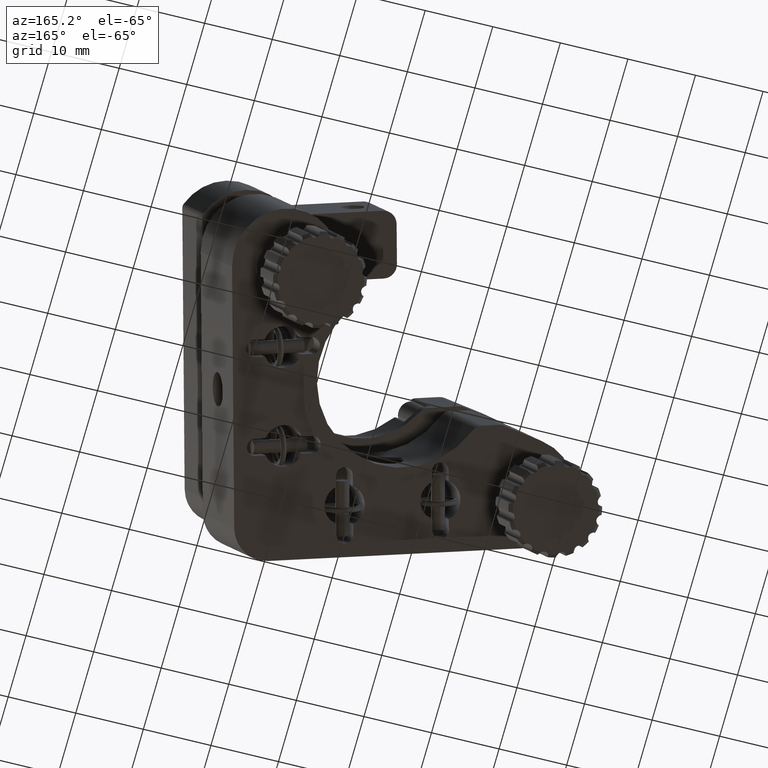
[diagram: clean part render]
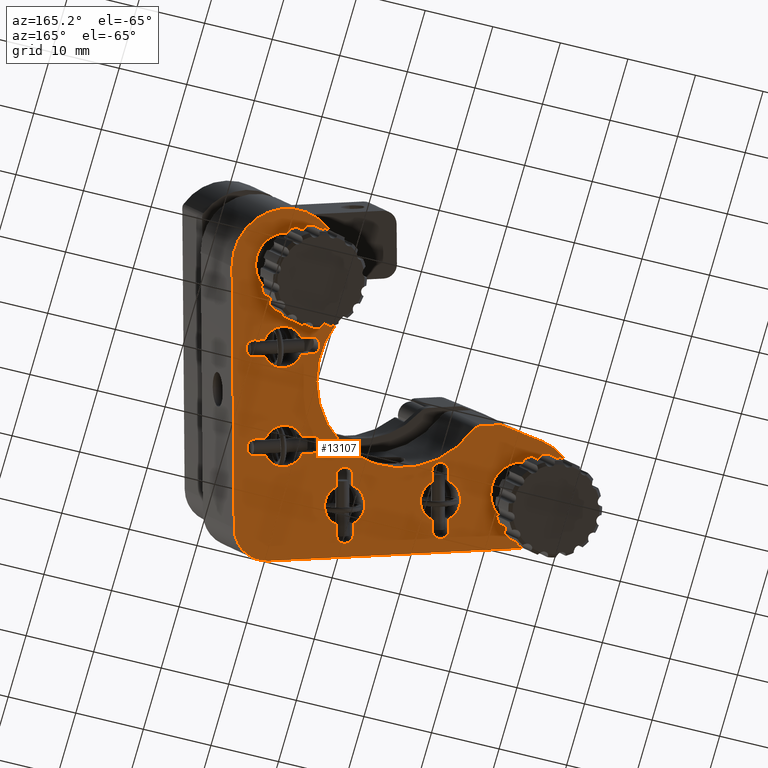
[diagram: same view with one face highlighted and labeled with its STEP entity id]
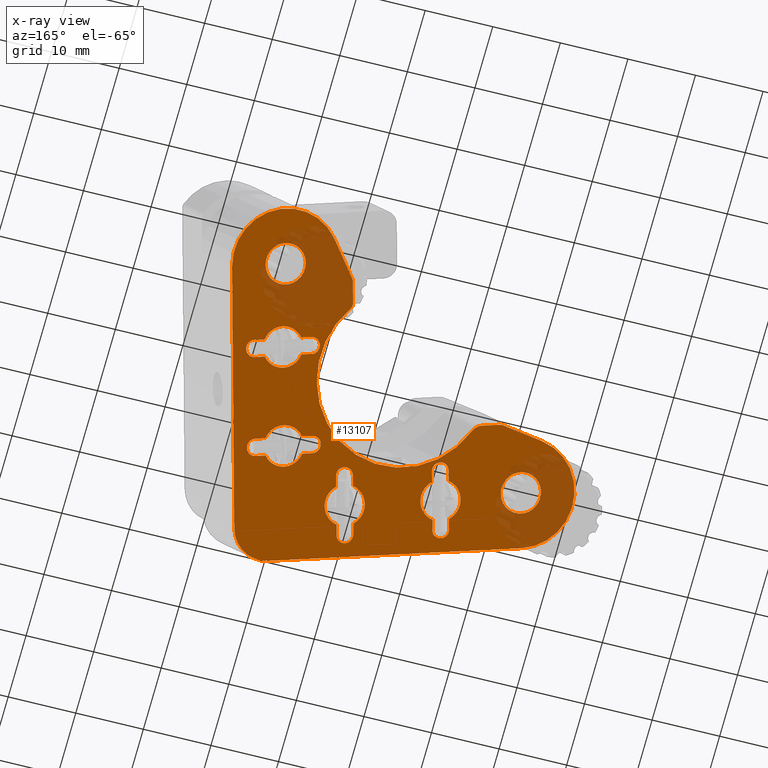
[diagram: x-ray of the same camera — body ghosted, the highlighted face saturated]
A machine part, auxiliary view. The second image highlights one B-rep face of the part: STEP entity #13107.
The next image is the same camera in x-ray: the body ghosted, the highlighted face saturated — about 20% of this face is hidden behind the body in this view.
In plain terms, the highlighted planar face has unit normal (-0.2028, 0.3443, -0.9167).
Its self-contained STEP definition (entity closure, byte-faithful):
#29 = DIRECTION ( 'NONE',  ( 0.2027682202555435900, -0.3442554385256142400, 0.9167187365271513000 ) ) ;
#32 = CARTESIAN_POINT ( 'NONE',  ( -604.0167296180897000, -1717.766813199293200, -528.8791007092810300 ) ) ;
#141 = DIRECTION ( 'NONE',  ( -0.2027682202555435900, 0.3442554385256142400, -0.9167187365271513000 ) ) ;
#217 = ORIENTED_EDGE ( 'NONE', *, *, #38135, .T. ) ;
#264 = ORIENTED_EDGE ( 'NONE', *, *, #40865, .T. ) ;
#279 = DIRECTION ( 'NONE',  ( 0.2027682202555435900, -0.3442554385256142400, 0.9167187365271513000 ) ) ;
#339 = CIRCLE ( 'NONE', #36694, 13.00000000000000400 ) ;
#760 = EDGE_CURVE ( 'NONE', #10450, #20540, #9610, .T. ) ;
#772 = EDGE_CURVE ( 'NONE', #38574, #31742, #26056, .T. ) ;
#822 = CIRCLE ( 'NONE', #26625, 13.00000000000000400 ) ;
#939 = DIRECTION ( 'NONE',  ( -0.2027682202555435900, 0.3442554385256142400, -0.9167187365271513000 ) ) ;
#1026 = EDGE_CURVE ( 'NONE', #9047, #29295, #34203, .T. ) ;
#1081 = CARTESIAN_POINT ( 'NONE',  ( -617.9726459261555600, -1718.856356168313400, -526.2013598478597500 ) ) ;
#1138 = EDGE_CURVE ( 'NONE', #23251, #16118, #26015, .T. ) ;
#1208 = CARTESIAN_POINT ( 'NONE',  ( -590.8714969947068300, -1721.638414137817300, -533.2405858011239800 ) ) ;
#1248 = AXIS2_PLACEMENT_3D ( 'NONE', #1325, #24270, #4627 ) ;
#1325 = CARTESIAN_POINT ( 'NONE',  ( -589.3044189134203600, -1720.448576675890500, -533.1403867105787000 ) ) ;
#1389 = EDGE_CURVE ( 'NONE', #39997, #17070, #13641, .T. ) ;
#1491 = ORIENTED_EDGE ( 'NONE', *, *, #20864, .T. ) ;
#1512 = VERTEX_POINT ( 'NONE', #1208 ) ;
#1550 = CARTESIAN_POINT ( 'NONE',  ( -604.3918342159903400, -1719.170044002340800, -529.3230869915640800 ) ) ;
#1667 = ORIENTED_EDGE ( 'NONE', *, *, #2061, .F. ) ;
#1668 = AXIS2_PLACEMENT_3D ( 'NONE', #23387, #3722, #26713 ) ;
#1691 = DIRECTION ( 'NONE',  ( 0.9461293057665262100, -0.1724606737361631900, -0.2740376849709178500 ) ) ;
#1753 = DIRECTION ( 'NONE',  ( 0.2027682202555435900, -0.3442554385256142400, 0.9167187365271513000 ) ) ;
#1755 = DIRECTION ( 'NONE',  ( -0.9461293057665245400, 0.1724606737361788800, 0.2740376849709133500 ) ) ;
#1764 = DIRECTION ( 'NONE',  ( 0.9461293057665247600, -0.1724606737361763800, -0.2740376849709138500 ) ) ;
#1805 = CARTESIAN_POINT ( 'NONE',  ( -615.1342580088559100, -1719.373738189522100, -527.0234729027724800 ) ) ;
#1860 = ORIENTED_EDGE ( 'NONE', *, *, #23081, .F. ) ;
#1914 = VECTOR ( 'NONE', #21183, 1000.000000000000000 ) ;
#1922 = DIRECTION ( 'NONE',  ( 0.9461293057665255400, -0.1724606737361978900, -0.2740376849708978100 ) ) ;
#2001 = DIRECTION ( 'NONE',  ( 0.2027682202555435900, -0.3442554385256142400, 0.9167187365271513000 ) ) ;
#2020 = DIRECTION ( 'NONE',  ( 0.9461293057665255400, -0.1724606737361978900, -0.2740376849708978100 ) ) ;
#2060 = DIRECTION ( 'NONE',  ( 0.2027682202555435900, -0.3442554385256142400, 0.9167187365271513000 ) ) ;
#2061 = EDGE_CURVE ( 'NONE', #31905, #29067, #9743, .T. ) ;
#2088 = CARTESIAN_POINT ( 'NONE',  ( -589.8830544340258900, -1727.103394275187800, -535.5114828490721900 ) ) ;
#2144 = CARTESIAN_POINT ( 'NONE',  ( -602.8340679858815700, -1717.982389041463400, -529.2216478154946300 ) ) ;
#2303 = CARTESIAN_POINT ( 'NONE',  ( -578.2512603692623500, -1702.803173357949800, -528.9588459410514400 ) ) ;
#2440 = CIRCLE ( 'NONE', #5711, 3.000000000000052000 ) ;
#2508 = VERTEX_POINT ( 'NONE', #6178 ) ;
#2722 = ORIENTED_EDGE ( 'NONE', *, *, #1026, .T. ) ;
#2786 = CARTESIAN_POINT ( 'NONE',  ( -582.6976832644979800, -1694.478840161386900, -524.8493082149454900 ) ) ;
#2877 = ORIENTED_EDGE ( 'NONE', *, *, #1389, .T. ) ;
#3004 = CARTESIAN_POINT ( 'NONE',  ( -575.3972344050694100, -1729.523756811744800, -539.6245076650707200 ) ) ;
#3075 = CARTESIAN_POINT ( 'NONE',  ( -575.2535842459723200, -1717.196277030266400, -535.0269423453570400 ) ) ;
#3228 = ORIENTED_EDGE ( 'NONE', *, *, #38642, .T. ) ;
#3397 = AXIS2_PLACEMENT_3D ( 'NONE', #9909, #32825, #13181 ) ;
#3430 = CARTESIAN_POINT ( 'NONE',  ( -592.6327941475206000, -1728.077655894944200, -535.2691348334038800 ) ) ;
#3722 = DIRECTION ( 'NONE',  ( 0.2027682202555435900, -0.3442554385256142400, 0.9167187365271513000 ) ) ;
#3769 = EDGE_CURVE ( 'NONE', #27106, #9865, #11368, .T. ) ;
#3875 = CIRCLE ( 'NONE', #32314, 3.000000000000052000 ) ;
#3968 = AXIS2_PLACEMENT_3D ( 'NONE', #23757, #4106, #27058 ) ;
#3988 = VERTEX_POINT ( 'NONE', #39897 ) ;
#3995 = DIRECTION ( 'NONE',  ( -0.2027682202555435900, 0.3442554385256142400, -0.9167187365271513000 ) ) ;
#4074 = ORIENTED_EDGE ( 'NONE', *, *, #4348, .T. ) ;
#4089 = VERTEX_POINT ( 'NONE', #34010 ) ;
#4106 = DIRECTION ( 'NONE',  ( 0.2027682202555435900, -0.3442554385256142400, 0.9167187365271513000 ) ) ;
#4198 = VERTEX_POINT ( 'NONE', #15161 ) ;
#4206 = DIRECTION ( 'NONE',  ( 0.2027682202555435900, -0.3442554385256142400, 0.9167187365271513000 ) ) ;
#4224 = VERTEX_POINT ( 'NONE', #5740 ) ;
#4348 = EDGE_CURVE ( 'NONE', #38510, #23251, #5696, .T. ) ;
#4374 = CIRCLE ( 'NONE', #4535, 1.000000000000004400 ) ;
#4413 = VECTOR ( 'NONE', #9513, 1000.000000000000000 ) ;
#4535 = AXIS2_PLACEMENT_3D ( 'NONE', #17064, #39968, #20352 ) ;
#4627 = DIRECTION ( 'NONE',  ( 0.9461293057665255400, -0.1724606737361978900, -0.2740376849708978100 ) ) ;
#4677 = LINE ( 'NONE', #3004, #22139 ) ;
#4774 = AXIS2_PLACEMENT_3D ( 'NONE', #20590, #939, #23887 ) ;
#4823 = CIRCLE ( 'NONE', #40499, 3.000000000000052000 ) ;
#5034 = CARTESIAN_POINT ( 'NONE',  ( -590.3772757143664200, -1724.370904206502500, -534.3760343250982000 ) ) ;
#5252 = DIRECTION ( 'NONE',  ( 0.2027682202555435900, -0.3442554385256142400, 0.9167187365271513000 ) ) ;
#5295 = CARTESIAN_POINT ( 'NONE',  ( -607.7295715507275400, -1712.972147371091300, -526.2573193031896600 ) ) ;
#5353 = CARTESIAN_POINT ( 'NONE',  ( -617.1537531635779000, -1726.756942953027000, -529.3493978242208900 ) ) ;
#5470 = LINE ( 'NONE', #8680, #4413 ) ;
#5609 = DIRECTION ( 'NONE',  ( 0.2524368943402550100, 0.9229005954381008800, 0.2907406151810336100 ) ) ;
#5617 = CARTESIAN_POINT ( 'NONE',  ( -591.4501325153124800, -1728.293231737114400, -535.6116819396174800 ) ) ;
#5696 = LINE ( 'NONE', #18380, #39508 ) ;
#5711 = AXIS2_PLACEMENT_3D ( 'NONE', #5034, #27983, #8337 ) ;
#5740 = CARTESIAN_POINT ( 'NONE',  ( -606.1624432199819200, -1725.611468260516900, -531.3503959383198200 ) ) ;
#5763 = CIRCLE ( 'NONE', #29496, 3.000000000000052000 ) ;
#5913 = VERTEX_POINT ( 'NONE', #20585 ) ;
#5995 = CIRCLE ( 'NONE', #33369, 3.000000000000052000 ) ;
#6049 = ORIENTED_EDGE ( 'NONE', *, *, #37254, .T. ) ;
#6091 = DIRECTION ( 'NONE',  ( -0.2027682202555435900, 0.3442554385256142400, -0.9167187365271513000 ) ) ;
#6120 = DIRECTION ( 'NONE',  ( -0.9461293057665367500, 0.1724606737361070700, 0.2740376849709168500 ) ) ;
#6177 = EDGE_CURVE ( 'NONE', #9865, #41762, #20584, .T. ) ;
#6178 = CARTESIAN_POINT ( 'NONE',  ( -579.6858357559220800, -1702.532882788744000, -528.5400312260155700 ) ) ;
#6197 = DIRECTION ( 'NONE',  ( 0.2027682202555435900, -0.3442554385256142400, 0.9167187365271513000 ) ) ;
#6350 = DIRECTION ( 'NONE',  ( 0.9461293057665247600, -0.1724606737361763800, -0.2740376849709138500 ) ) ;
#6397 = CARTESIAN_POINT ( 'NONE',  ( -603.9069247868277400, -1721.904716572075400, -530.4572954300140300 ) ) ;
#6592 = ORIENTED_EDGE ( 'NONE', *, *, #7336, .T. ) ;
#6614 = DIRECTION ( 'NONE',  ( -0.2027682202555435900, 0.3442554385256142400, -0.9167187365271513000 ) ) ;
#6666 = CARTESIAN_POINT ( 'NONE',  ( -583.9267755808383500, -1718.037612792104300, -533.4244735610569700 ) ) ;
#6702 = VERTEX_POINT ( 'NONE', #20716 ) ;
#6743 = VECTOR ( 'NONE', #16731, 1000.000000000000200 ) ;
#6754 = CIRCLE ( 'NONE', #20014, 2.000000000000047500 ) ;
#6807 = FACE_BOUND ( 'NONE', #32633, .T. ) ;
#7155 = ORIENTED_EDGE ( 'NONE', *, *, #1138, .T. ) ;
#7215 = CARTESIAN_POINT ( 'NONE',  ( -571.9830819203176600, -1703.984170562142700, -530.7887988283664500 ) ) ;
#7291 = ORIENTED_EDGE ( 'NONE', *, *, #21127, .F. ) ;
#7336 = EDGE_CURVE ( 'NONE', #32980, #9047, #7605, .T. ) ;
#7601 = VECTOR ( 'NONE', #27424, 1000.000000000000100 ) ;
#7605 = CIRCLE ( 'NONE', #25639, 1.249999999999991100 ) ;
#7798 = AXIS2_PLACEMENT_3D ( 'NONE', #25512, #25653, #25605 ) ;
#7981 = DIRECTION ( 'NONE',  ( -0.2027682202555435900, 0.3442554385256142400, -0.9167187365271513000 ) ) ;
#7990 = EDGE_CURVE ( 'NONE', #4198, #28126, #35665, .T. ) ;
#8122 = EDGE_CURVE ( 'NONE', #13211, #37978, #32165, .T. ) ;
#8139 = CARTESIAN_POINT ( 'NONE',  ( -583.6438125702645700, -1694.306379487650700, -524.5752705299745500 ) ) ;
#8337 = DIRECTION ( 'NONE',  ( -0.9461293057665245400, 0.1724606737361788800, 0.2740376849709133500 ) ) ;
#8436 = CARTESIAN_POINT ( 'NONE',  ( -594.3485753681405900, -1706.206547424991200, -526.6763640871013200 ) ) ;
#8547 = AXIS2_PLACEMENT_3D ( 'NONE', #1805, #1753, #1691 ) ;
#8587 = DIRECTION ( 'NONE',  ( -0.9461293057665185500, 0.1724606737362147600, 0.2740376849709115800 ) ) ;
#8680 = CARTESIAN_POINT ( 'NONE',  ( -579.6858357559220800, -1702.532882788744000, -528.5400312260155700 ) ) ;
#8757 = EDGE_CURVE ( 'NONE', #37978, #29074, #5470, .T. ) ;
#8771 = AXIS2_PLACEMENT_3D ( 'NONE', #28303, #26247, #27588 ) ;
#8861 = ORIENTED_EDGE ( 'NONE', *, *, #26341, .F. ) ;
#8881 = EDGE_CURVE ( 'NONE', #30744, #32980, #31074, .T. ) ;
#8885 = AXIS2_PLACEMENT_3D ( 'NONE', #24894, #5252, #28189 ) ;
#8945 = VECTOR ( 'NONE', #14441, 1000.000000000000000 ) ;
#9047 = VERTEX_POINT ( 'NONE', #22710 ) ;
#9117 = CARTESIAN_POINT ( 'NONE',  ( -604.9797815877738000, -1725.827044102687100, -531.6929430445334200 ) ) ;
#9312 = EDGE_CURVE ( 'NONE', #41762, #4198, #35072, .T. ) ;
#9481 = CARTESIAN_POINT ( 'NONE',  ( -583.9267755808383500, -1718.037612792104300, -533.4244735610569700 ) ) ;
#9513 = DIRECTION ( 'NONE',  ( -0.9446034693946007100, 0.1779742018375035400, 0.2757706820675237500 ) ) ;
#9550 = ORIENTED_EDGE ( 'NONE', *, *, #19753, .T. ) ;
#9565 = LINE ( 'NONE', #22090, #26012 ) ;
#9571 = AXIS2_PLACEMENT_3D ( 'NONE', #5617, #34810, #27264 ) ;
#9610 = LINE ( 'NONE', #39133, #1914 ) ;
#9692 = VERTEX_POINT ( 'NONE', #37990 ) ;
#9743 = CIRCLE ( 'NONE', #40067, 3.000000000000052000 ) ;
#9827 = ORIENTED_EDGE ( 'NONE', *, *, #12828, .T. ) ;
#9865 = VERTEX_POINT ( 'NONE', #31872 ) ;
#9909 = CARTESIAN_POINT ( 'NONE',  ( -604.9797815877738000, -1725.827044102687100, -531.6929430445334200 ) ) ;
#10122 = LINE ( 'NONE', #9481, #25533 ) ;
#10135 = EDGE_CURVE ( 'NONE', #25642, #29067, #22005, .T. ) ;
#10281 = CARTESIAN_POINT ( 'NONE',  ( -575.5691303638976700, -1718.349902774563800, -535.3903681143333400 ) ) ;
#10356 = VECTOR ( 'NONE', #25903, 1000.000000000000200 ) ;
#10380 = CARTESIAN_POINT ( 'NONE',  ( -587.5388877970667600, -1724.888286227711000, -535.1981473800109400 ) ) ;
#10450 = VERTEX_POINT ( 'NONE', #42275 ) ;
#10971 = DIRECTION ( 'NONE',  ( -0.2027682202555435900, 0.3442554385256142400, -0.9167187365271513000 ) ) ;
#10981 = EDGE_CURVE ( 'NONE', #6702, #41404, #5995, .T. ) ;
#11053 = EDGE_CURVE ( 'NONE', #6702, #27634, #38742, .T. ) ;
#11069 = VERTEX_POINT ( 'NONE', #42017 ) ;
#11284 = CARTESIAN_POINT ( 'NONE',  ( -572.2748288927572300, -1706.306050004096700, -531.5962030862209500 ) ) ;
#11322 = LINE ( 'NONE', #30537, #36436 ) ;
#11340 = ORIENTED_EDGE ( 'NONE', *, *, #40102, .F. ) ;
#11368 = LINE ( 'NONE', #22739, #10356 ) ;
#11379 = AXIS2_PLACEMENT_3D ( 'NONE', #23665, #3995, #26965 ) ;
#11501 = EDGE_CURVE ( 'NONE', #11984, #31742, #14681, .T. ) ;
#11659 = VERTEX_POINT ( 'NONE', #8139 ) ;
#11711 = DIRECTION ( 'NONE',  ( 0.9461293057665236500, -0.1724606737361761300, -0.2740376849709180200 ) ) ;
#11759 = VECTOR ( 'NONE', #41254, 1000.000000000000000 ) ;
#11777 = VERTEX_POINT ( 'NONE', #2088 ) ;
#11855 = EDGE_CURVE ( 'NONE', #41404, #11777, #3875, .T. ) ;
#11884 = CARTESIAN_POINT ( 'NONE',  ( -590.2674708831042400, -1728.508807579284600, -535.9542290458310800 ) ) ;
#11984 = VERTEX_POINT ( 'NONE', #3075 ) ;
#12101 = CARTESIAN_POINT ( 'NONE',  ( -603.7561357396205000, -1725.708519275086700, -531.9190905705856900 ) ) ;
#12236 = VERTEX_POINT ( 'NONE', #13676 ) ;
#12335 = ORIENTED_EDGE ( 'NONE', *, *, #27975, .T. ) ;
#12391 = DIRECTION ( 'NONE',  ( 0.9461293057665255400, -0.1724606737361978900, -0.2740376849708978100 ) ) ;
#12638 = VECTOR ( 'NONE', #29133, 1000.000000000000100 ) ;
#12822 = VERTEX_POINT ( 'NONE', #15896 ) ;
#12828 = EDGE_CURVE ( 'NONE', #9692, #13315, #20691, .T. ) ;
#12886 = EDGE_CURVE ( 'NONE', #33987, #10450, #41671, .T. ) ;
#12936 = DIRECTION ( 'NONE',  ( -0.2027682202555437200, 0.3442554385256142400, -0.9167187365271511900 ) ) ;
#12948 = ORIENTED_EDGE ( 'NONE', *, *, #37509, .T. ) ;
#13107 = ADVANCED_FACE ( 'NONE', ( #15465, #6807, #24208, #31899, #23199, #18596, #14443 ), #35404, .T. ) ;
#13176 = CARTESIAN_POINT ( 'NONE',  ( -583.2956833449878800, -1715.730361303509000, -532.6976220231043700 ) ) ;
#13181 = DIRECTION ( 'NONE',  ( 0.9461293057665255400, -0.1724606737361978900, -0.2740376849708978100 ) ) ;
#13211 = VERTEX_POINT ( 'NONE', #32986 ) ;
#13268 = VERTEX_POINT ( 'NONE', #13364 ) ;
#13315 = VERTEX_POINT ( 'NONE', #20116 ) ;
#13320 = CARTESIAN_POINT ( 'NONE',  ( -583.4982930982851000, -1697.405842152307100, -525.7713992436897600 ) ) ;
#13364 = CARTESIAN_POINT ( 'NONE',  ( -584.4444224040515800, -1697.233381478570900, -525.4973615587188100 ) ) ;
#13394 = EDGE_CURVE ( 'NONE', #39088, #16717, #11322, .T. ) ;
#13563 = DIRECTION ( 'NONE',  ( 0.9461293057665255400, -0.1724606737361978900, -0.2740376849708978100 ) ) ;
#13628 = VECTOR ( 'NONE', #38424, 1000.000000000000200 ) ;
#13641 = CIRCLE ( 'NONE', #8771, 3.000000000000052000 ) ;
#13676 = CARTESIAN_POINT ( 'NONE',  ( -601.0685368695280900, -1722.422098593283600, -531.2794084849267600 ) ) ;
#13740 = CARTESIAN_POINT ( 'NONE',  ( -580.6316641061720200, -1704.735536122376300, -529.1579868054860800 ) ) ;
#14205 = ORIENTED_EDGE ( 'NONE', *, *, #35391, .T. ) ;
#14220 = CARTESIAN_POINT ( 'NONE',  ( -583.6438125702645700, -1694.306379487650700, -524.5752705299745500 ) ) ;
#14225 = AXIS2_PLACEMENT_3D ( 'NONE', #25833, #6197, #29100 ) ;
#14263 = CIRCLE ( 'NONE', #35085, 1.249999999999991100 ) ;
#14441 = DIRECTION ( 'NONE',  ( 0.9461293057665248800, -0.1724606737361763000, -0.2740376849709138000 ) ) ;
#14443 = FACE_OUTER_BOUND ( 'NONE', #40033, .T. ) ;
#14681 = LINE ( 'NONE', #24052, #23446 ) ;
#14893 = EDGE_CURVE ( 'NONE', #12822, #11984, #18399, .T. ) ;
#14956 = ORIENTED_EDGE ( 'NONE', *, *, #41924, .T. ) ;
#14966 = ORIENTED_EDGE ( 'NONE', *, *, #29365, .F. ) ;
#15125 = CIRCLE ( 'NONE', #3968, 3.000000000000052000 ) ;
#15128 = LINE ( 'NONE', #3430, #31549 ) ;
#15161 = CARTESIAN_POINT ( 'NONE',  ( -581.3900654056033100, -1733.275956420254300, -539.7080223161214000 ) ) ;
#15380 = EDGE_CURVE ( 'NONE', #31905, #42404, #10122, .T. ) ;
#15412 = CIRCLE ( 'NONE', #22086, 1.249999999999991100 ) ;
#15431 = VECTOR ( 'NONE', #32261, 1000.000000000000100 ) ;
#15465 = FACE_BOUND ( 'NONE', #23281, .T. ) ;
#15509 = EDGE_CURVE ( 'NONE', #24159, #25642, #35703, .T. ) ;
#15827 = DIRECTION ( 'NONE',  ( -0.2027682202555435900, 0.3442554385256142400, -0.9167187365271513000 ) ) ;
#15895 = CARTESIAN_POINT ( 'NONE',  ( -578.8828163865706500, -1705.064199970652500, -529.6682360653510400 ) ) ;
#15896 = CARTESIAN_POINT ( 'NONE',  ( -574.3864687316895500, -1718.565478616734300, -535.7329152205470600 ) ) ;
#16118 = VERTEX_POINT ( 'NONE', #11884 ) ;
#16174 = CARTESIAN_POINT ( 'NONE',  ( -609.7675485831159700, -1710.662834730839900, -524.9393246301247000 ) ) ;
#16442 = EDGE_CURVE ( 'NONE', #38471, #1512, #15128, .T. ) ;
#16612 = DIRECTION ( 'NONE',  ( 0.9461293057665367500, -0.1724606737361070700, -0.2740376849709168500 ) ) ;
#16717 = VERTEX_POINT ( 'NONE', #17793 ) ;
#16731 = DIRECTION ( 'NONE',  ( -0.9461293057665251000, 0.1724606737361751600, 0.2740376849709134100 ) ) ;
#16777 = VECTOR ( 'NONE', #39433, 1000.000000000000000 ) ;
#17064 = CARTESIAN_POINT ( 'NONE',  ( -610.0199854774563200, -1711.585735326277900, -525.2300652453058100 ) ) ;
#17070 = VERTEX_POINT ( 'NONE', #37726 ) ;
#17656 = ORIENTED_EDGE ( 'NONE', *, *, #11855, .F. ) ;
#17792 = CARTESIAN_POINT ( 'NONE',  ( -603.9069247868277400, -1721.904716572075400, -530.4572954300140300 ) ) ;
#17793 = CARTESIAN_POINT ( 'NONE',  ( -603.4588664559710200, -1724.647738189088600, -531.5864881242641800 ) ) ;
#17959 = CARTESIAN_POINT ( 'NONE',  ( -583.9267755808383500, -1718.037612792104300, -533.4244735610569700 ) ) ;
#18097 = CARTESIAN_POINT ( 'NONE',  ( -584.2733132604176900, -1698.034463957498700, -525.8360395896477300 ) ) ;
#18187 = CIRCLE ( 'NONE', #22014, 3.000000000000052000 ) ;
#18380 = CARTESIAN_POINT ( 'NONE',  ( -592.6327941475206000, -1728.077655894944200, -535.2691348334038800 ) ) ;
#18399 = CIRCLE ( 'NONE', #42291, 1.249999999999991100 ) ;
#18519 = CARTESIAN_POINT ( 'NONE',  ( -579.6858357559220800, -1702.532882788744000, -528.5400312260155700 ) ) ;
#18596 = FACE_BOUND ( 'NONE', #24143, .T. ) ;
#18794 = ORIENTED_EDGE ( 'NONE', *, *, #14893, .T. ) ;
#19014 = EDGE_CURVE ( 'NONE', #5913, #31693, #5763, .T. ) ;
#19092 = ORIENTED_EDGE ( 'NONE', *, *, #9312, .F. ) ;
#19274 = CARTESIAN_POINT ( 'NONE',  ( -590.2674708831042400, -1728.508807579284600, -535.9542290458310800 ) ) ;
#19302 = CIRCLE ( 'NONE', #20754, 3.000000000000052000 ) ;
#19556 = CIRCLE ( 'NONE', #4774, 3.000000000000052000 ) ;
#19664 = CARTESIAN_POINT ( 'NONE',  ( -573.4241542451399000, -1693.258428914295100, -526.4422109314604100 ) ) ;
#19750 = CIRCLE ( 'NONE', #11379, 3.000000000000052000 ) ;
#19753 = EDGE_CURVE ( 'NONE', #27634, #38471, #37361, .T. ) ;
#19778 = CARTESIAN_POINT ( 'NONE',  ( -594.3485753681405900, -1706.206547424991200, -526.6763640871013200 ) ) ;
#19875 = CARTESIAN_POINT ( 'NONE',  ( -579.5901799134053400, -1717.616944911185300, -534.2257079532070100 ) ) ;
#19905 = CARTESIAN_POINT ( 'NONE',  ( -575.9803323243397700, -1704.419466396420400, -530.0681171561182100 ) ) ;
#19911 = ORIENTED_EDGE ( 'NONE', *, *, #13394, .T. ) ;
#20014 = AXIS2_PLACEMENT_3D ( 'NONE', #5295, #28234, #8587 ) ;
#20015 = ORIENTED_EDGE ( 'NONE', *, *, #25916, .F. ) ;
#20116 = CARTESIAN_POINT ( 'NONE',  ( -605.7443788685205800, -1724.229785550567400, -530.9240038431831900 ) ) ;
#20145 = ORIENTED_EDGE ( 'NONE', *, *, #10981, .F. ) ;
#20299 = VERTEX_POINT ( 'NONE', #29249 ) ;
#20352 = DIRECTION ( 'NONE',  ( -0.9461293057665367500, 0.1724606737361070700, 0.2740376849709168500 ) ) ;
#20381 = CARTESIAN_POINT ( 'NONE',  ( -576.2625421624395600, -1692.741046893086600, -525.6200978765476700 ) ) ;
#20540 = VERTEX_POINT ( 'NONE', #33238 ) ;
#20584 = CIRCLE ( 'NONE', #8547, 8.000000000000007100 ) ;
#20585 = CARTESIAN_POINT ( 'NONE',  ( -570.5857663278403600, -1693.775810935503600, -527.2643239863731400 ) ) ;
#20590 = CARTESIAN_POINT ( 'NONE',  ( -615.1342580088559100, -1719.373738189522100, -527.0234729027724800 ) ) ;
#20691 = CIRCLE ( 'NONE', #14225, 3.000000000000052000 ) ;
#20716 = CARTESIAN_POINT ( 'NONE',  ( -588.5061737302905800, -1722.069565822157800, -533.9256800135511900 ) ) ;
#20754 = AXIS2_PLACEMENT_3D ( 'NONE', #26261, #6614, #29515 ) ;
#20850 = ORIENTED_EDGE ( 'NONE', *, *, #27228, .T. ) ;
#20864 = EDGE_CURVE ( 'NONE', #16118, #11777, #9565, .T. ) ;
#20887 = ORIENTED_EDGE ( 'NONE', *, *, #19014, .F. ) ;
#20952 = VECTOR ( 'NONE', #1764, 1000.000000000000100 ) ;
#21054 = AXIS2_PLACEMENT_3D ( 'NONE', #41272, #21682, #2020 ) ;
#21063 = DIRECTION ( 'NONE',  ( 0.9461293057665245400, -0.1724606737361788800, -0.2740376849709133500 ) ) ;
#21127 = EDGE_CURVE ( 'NONE', #35243, #4089, #339, .T. ) ;
#21183 = DIRECTION ( 'NONE',  ( -0.6154380359090602100, -0.7729655713200844800, -0.1541436002895149300 ) ) ;
#21188 = AXIS2_PLACEMENT_3D ( 'NONE', #9117, #32029, #12391 ) ;
#21224 = CIRCLE ( 'NONE', #32151, 1.000000000000004400 ) ;
#21287 = ORIENTED_EDGE ( 'NONE', *, *, #8757, .T. ) ;
#21615 = ORIENTED_EDGE ( 'NONE', *, *, #35447, .T. ) ;
#21664 = CARTESIAN_POINT ( 'NONE',  ( -571.9592827748319900, -1705.152424259799100, -531.2327773172446500 ) ) ;
#21682 = DIRECTION ( 'NONE',  ( 0.2027682202555435900, -0.3442554385256142400, 0.9167187365271513000 ) ) ;
#21746 = EDGE_CURVE ( 'NONE', #2508, #24280, #24941, .T. ) ;
#21967 = DIRECTION ( 'NONE',  ( 0.2027682202555435900, -0.3442554385256142400, 0.9167187365271513000 ) ) ;
#22005 = LINE ( 'NONE', #17959, #20952 ) ;
#22014 = AXIS2_PLACEMENT_3D ( 'NONE', #19905, #279, #23208 ) ;
#22018 = CARTESIAN_POINT ( 'NONE',  ( -571.9592827748319900, -1705.152424259799100, -531.2327773172446500 ) ) ;
#22086 = AXIS2_PLACEMENT_3D ( 'NONE', #10281, #33201, #13563 ) ;
#22090 = CARTESIAN_POINT ( 'NONE',  ( -590.2674708831042400, -1728.508807579284600, -535.9542290458310800 ) ) ;
#22108 = DIRECTION ( 'NONE',  ( 0.9461293057665255400, -0.1724606737361978900, -0.2740376849708978100 ) ) ;
#22139 = VECTOR ( 'NONE', #25972, 1000.000000000000100 ) ;
#22299 = CARTESIAN_POINT ( 'NONE',  ( -603.7971199555656800, -1726.042619944857300, -532.0354901507471400 ) ) ;
#22710 = CARTESIAN_POINT ( 'NONE',  ( -604.0167296180897000, -1717.766813199293200, -528.8791007092810300 ) ) ;
#22739 = CARTESIAN_POINT ( 'NONE',  ( -610.1741983570334500, -1710.672477603961900, -524.8529993088935700 ) ) ;
#22778 = ORIENTED_EDGE ( 'NONE', *, *, #760, .F. ) ;
#22945 = DIRECTION ( 'NONE',  ( 0.9461293057665262100, -0.1724606737361631900, -0.2740376849709178500 ) ) ;
#23035 = ORIENTED_EDGE ( 'NONE', *, *, #8881, .T. ) ;
#23067 = DIRECTION ( 'NONE',  ( 0.9461293057665236500, -0.1724606737361761300, -0.2740376849709180200 ) ) ;
#23081 = EDGE_CURVE ( 'NONE', #38510, #3988, #4823, .T. ) ;
#23199 = FACE_BOUND ( 'NONE', #26181, .T. ) ;
#23208 = DIRECTION ( 'NONE',  ( 0.9461293057665245400, -0.1724606737361788800, -0.2740376849709133500 ) ) ;
#23251 = VERTEX_POINT ( 'NONE', #34606 ) ;
#23281 = EDGE_LOOP ( 'NONE', ( #36885, #14956, #41744, #36589, #1667, #24490, #3228, #18794, #24988 ) ) ;
#23387 = CARTESIAN_POINT ( 'NONE',  ( -583.6112294629131200, -1716.883987047806600, -533.0610477920806700 ) ) ;
#23446 = VECTOR ( 'NONE', #30637, 1000.000000000000100 ) ;
#23606 = AXIS2_PLACEMENT_3D ( 'NONE', #32564, #12936, #35830 ) ;
#23665 = CARTESIAN_POINT ( 'NONE',  ( -615.1342580088559100, -1719.373738189522100, -527.0234729027724800 ) ) ;
#23757 = CARTESIAN_POINT ( 'NONE',  ( -603.9069247868277400, -1721.904716572075400, -530.4572954300140300 ) ) ;
#23836 = AXIS2_PLACEMENT_3D ( 'NONE', #13320, #36207, #16612 ) ;
#23861 = CARTESIAN_POINT ( 'NONE',  ( -575.5691303638976700, -1718.349902774563800, -535.3903681143333400 ) ) ;
#23887 = DIRECTION ( 'NONE',  ( -0.9461293057665245400, 0.1724606737361788800, 0.2740376849709133500 ) ) ;
#23936 = CIRCLE ( 'NONE', #23836, 1.000000000000004400 ) ;
#23957 = CARTESIAN_POINT ( 'NONE',  ( -576.6943707405232500, -1716.933650127108600, -534.6096317377080100 ) ) ;
#24013 = ORIENTED_EDGE ( 'NONE', *, *, #21746, .T. ) ;
#24052 = CARTESIAN_POINT ( 'NONE',  ( -583.2956833449878800, -1715.730361303509000, -532.6976220231043700 ) ) ;
#24143 = EDGE_LOOP ( 'NONE', ( #23035, #6592, #2722, #20850, #9827, #36687, #39988, #24272, #25627, #19911, #12948, #217 ) ) ;
#24159 = VERTEX_POINT ( 'NONE', #13176 ) ;
#24208 = FACE_BOUND ( 'NONE', #32503, .T. ) ;
#24270 = DIRECTION ( 'NONE',  ( 0.2027682202555435900, -0.3442554385256142400, 0.9167187365271513000 ) ) ;
#24272 = ORIENTED_EDGE ( 'NONE', *, *, #32211, .T. ) ;
#24280 = VERTEX_POINT ( 'NONE', #13740 ) ;
#24299 = CIRCLE ( 'NONE', #21188, 1.249999999999991100 ) ;
#24316 = CIRCLE ( 'NONE', #31352, 3.000000000000052000 ) ;
#24431 = VERTEX_POINT ( 'NONE', #11284 ) ;
#24490 = ORIENTED_EDGE ( 'NONE', *, *, #15380, .T. ) ;
#24894 = CARTESIAN_POINT ( 'NONE',  ( -580.0013818738474400, -1703.686508533041700, -528.9034569949918700 ) ) ;
#24941 = CIRCLE ( 'NONE', #8885, 1.249999999999991100 ) ;
#24977 = DIRECTION ( 'NONE',  ( 0.9461293057665255400, -0.1724606737361978900, -0.2740376849708978100 ) ) ;
#24988 = ORIENTED_EDGE ( 'NONE', *, *, #11501, .T. ) ;
#25039 = EDGE_CURVE ( 'NONE', #11069, #25067, #19556, .T. ) ;
#25062 = CARTESIAN_POINT ( 'NONE',  ( -604.0167296180897000, -1717.766813199293200, -528.8791007092810300 ) ) ;
#25067 = VERTEX_POINT ( 'NONE', #1081 ) ;
#25511 = VERTEX_POINT ( 'NONE', #22299 ) ;
#25512 = CARTESIAN_POINT ( 'NONE',  ( -580.1278809339020200, -1728.661453443063700, -538.2543192402162000 ) ) ;
#25533 = VECTOR ( 'NONE', #6350, 1000.000000000000100 ) ;
#25605 = DIRECTION ( 'NONE',  ( -0.9461293057665197700, 0.1724606737361968600, 0.2740376849709183500 ) ) ;
#25627 = ORIENTED_EDGE ( 'NONE', *, *, #41051, .T. ) ;
#25639 = AXIS2_PLACEMENT_3D ( 'NONE', #2144, #2060, #1922 ) ;
#25642 = VERTEX_POINT ( 'NONE', #6666 ) ;
#25653 = DIRECTION ( 'NONE',  ( 0.2027682202555435900, -0.3442554385256142400, 0.9167187365271513000 ) ) ;
#25657 = CARTESIAN_POINT ( 'NONE',  ( -590.4870805456284900, -1720.233000833720300, -532.7978396043650900 ) ) ;
#25684 = ORIENTED_EDGE ( 'NONE', *, *, #16442, .T. ) ;
#25721 = CARTESIAN_POINT ( 'NONE',  ( -590.3772757143664200, -1724.370904206502500, -534.3760343250982000 ) ) ;
#25756 = DIRECTION ( 'NONE',  ( 0.2027682202555435900, -0.3442554385256142400, 0.9167187365271513000 ) ) ;
#25833 = CARTESIAN_POINT ( 'NONE',  ( -603.9069247868277400, -1721.904716572075400, -530.4572954300140300 ) ) ;
#25903 = DIRECTION ( 'NONE',  ( -0.9670074646179919200, -0.2178268249674841200, 0.1320910205035455400 ) ) ;
#25916 = EDGE_CURVE ( 'NONE', #3988, #1512, #2440, .T. ) ;
#25925 = VERTEX_POINT ( 'NONE', #18097 ) ;
#25972 = DIRECTION ( 'NONE',  ( 0.2524368943402550100, 0.9229005954381008800, 0.2907406151810336100 ) ) ;
#26012 = VECTOR ( 'NONE', #5609, 1000.000000000000100 ) ;
#26015 = CIRCLE ( 'NONE', #9571, 1.249999999999991100 ) ;
#26056 = CIRCLE ( 'NONE', #33180, 3.000000000000052000 ) ;
#26180 = CARTESIAN_POINT ( 'NONE',  ( -575.3972344050694100, -1729.523756811744800, -539.6245076650707200 ) ) ;
#26181 = EDGE_LOOP ( 'NONE', ( #21615, #24013, #6049, #2877, #12335, #14205, #33978, #21287, #264 ) ) ;
#26247 = DIRECTION ( 'NONE',  ( 0.2027682202555435900, -0.3442554385256142400, 0.9167187365271513000 ) ) ;
#26261 = CARTESIAN_POINT ( 'NONE',  ( -573.4241542451399000, -1693.258428914295100, -526.4422109314604100 ) ) ;
#26265 = DIRECTION ( 'NONE',  ( -0.2469673333761308000, -0.9238814226208335000, -0.2923187527018885100 ) ) ;
#26341 = EDGE_CURVE ( 'NONE', #13268, #25925, #23936, .T. ) ;
#26625 = AXIS2_PLACEMENT_3D ( 'NONE', #8436, #31353, #11711 ) ;
#26642 = CARTESIAN_POINT ( 'NONE',  ( -588.1217572812122400, -1720.664152518060700, -533.4829338167923000 ) ) ;
#26713 = DIRECTION ( 'NONE',  ( 0.9461293057665255400, -0.1724606737361978900, -0.2740376849708978100 ) ) ;
#26737 = EDGE_CURVE ( 'NONE', #25925, #35243, #822, .T. ) ;
#26965 = DIRECTION ( 'NONE',  ( -0.9461293057665245400, 0.1724606737361788800, 0.2740376849709133500 ) ) ;
#27058 = DIRECTION ( 'NONE',  ( 0.9461293057665245400, -0.1724606737361788800, -0.2740376849709133500 ) ) ;
#27106 = VERTEX_POINT ( 'NONE', #36467 ) ;
#27166 = DIRECTION ( 'NONE',  ( 0.9461293057665255400, -0.1724606737361978900, -0.2740376849708978100 ) ) ;
#27228 = EDGE_CURVE ( 'NONE', #29295, #9692, #15125, .T. ) ;
#27264 = DIRECTION ( 'NONE',  ( 0.9461293057665255400, -0.1724606737361978900, -0.2740376849708978100 ) ) ;
#27375 = CARTESIAN_POINT ( 'NONE',  ( -565.8551197990077500, -1694.638114304184500, -528.6345124112277700 ) ) ;
#27411 = VERTEX_POINT ( 'NONE', #37287 ) ;
#27424 = DIRECTION ( 'NONE',  ( -0.2524368943402560700, -0.9229005954381006600, -0.2907406151810333400 ) ) ;
#27572 = AXIS2_PLACEMENT_3D ( 'NONE', #22018, #21967, #22108 ) ;
#27588 = DIRECTION ( 'NONE',  ( 0.9461293057665245400, -0.1724606737361788800, -0.2740376849709133500 ) ) ;
#27630 = CARTESIAN_POINT ( 'NONE',  ( -590.3772757143664200, -1724.370904206502500, -534.3760343250982000 ) ) ;
#27634 = VERTEX_POINT ( 'NONE', #26642 ) ;
#27668 = CARTESIAN_POINT ( 'NONE',  ( -575.8846764818229100, -1719.503528518861500, -535.7537938833096400 ) ) ;
#27975 = EDGE_CURVE ( 'NONE', #17070, #24431, #39736, .T. ) ;
#27983 = DIRECTION ( 'NONE',  ( -0.2027682202555435900, 0.3442554385256142400, -0.9167187365271513000 ) ) ;
#28126 = VERTEX_POINT ( 'NONE', #26180 ) ;
#28189 = DIRECTION ( 'NONE',  ( 0.9461293057665255400, -0.1724606737361978900, -0.2740376849708978100 ) ) ;
#28234 = DIRECTION ( 'NONE',  ( 0.2027682202555435900, -0.3442554385256142400, 0.9167187365271513000 ) ) ;
#28290 = DIRECTION ( 'NONE',  ( 0.9461293057665245400, -0.1724606737361788800, -0.2740376849709133500 ) ) ;
#28303 = CARTESIAN_POINT ( 'NONE',  ( -575.9803323243397700, -1704.419466396420400, -530.0681171561182100 ) ) ;
#28645 = EDGE_CURVE ( 'NONE', #20299, #4224, #36558, .T. ) ;
#28774 = VECTOR ( 'NONE', #26265, 1000.000000000000000 ) ;
#28970 = CARTESIAN_POINT ( 'NONE',  ( -583.2956833449878800, -1715.730361303509000, -532.6976220231043700 ) ) ;
#28992 = DIRECTION ( 'NONE',  ( -0.9461293057665245400, 0.1724606737361788800, 0.2740376849709133500 ) ) ;
#29067 = VERTEX_POINT ( 'NONE', #29953 ) ;
#29074 = VERTEX_POINT ( 'NONE', #33241 ) ;
#29100 = DIRECTION ( 'NONE',  ( 0.9461293057665245400, -0.1724606737361788800, -0.2740376849709133500 ) ) ;
#29133 = DIRECTION ( 'NONE',  ( 0.2524368943402550100, 0.9229005954381008800, 0.2907406151810336100 ) ) ;
#29249 = CARTESIAN_POINT ( 'NONE',  ( -606.0320090808726300, -1725.305782955340900, -531.2644525323468100 ) ) ;
#29295 = VERTEX_POINT ( 'NONE', #1550 ) ;
#29301 = DIRECTION ( 'NONE',  ( 0.2027682202555435900, -0.3442554385256142400, 0.9167187365271513000 ) ) ;
#29365 = EDGE_CURVE ( 'NONE', #4089, #27411, #6754, .T. ) ;
#29496 = AXIS2_PLACEMENT_3D ( 'NONE', #30624, #10971, #33920 ) ;
#29515 = DIRECTION ( 'NONE',  ( -0.9461293057665245400, 0.1724606737361788800, 0.2740376849709133500 ) ) ;
#29602 = AXIS2_PLACEMENT_3D ( 'NONE', #19664, #29, #22945 ) ;
#29857 = CIRCLE ( 'NONE', #42061, 3.000000000000052000 ) ;
#29953 = CARTESIAN_POINT ( 'NONE',  ( -582.4859890862874200, -1718.300239695261800, -533.8417841687061100 ) ) ;
#30207 = CARTESIAN_POINT ( 'NONE',  ( -601.6514063536734500, -1718.197964883633400, -529.5641949217082400 ) ) ;
#30537 = CARTESIAN_POINT ( 'NONE',  ( -601.6514063536734500, -1718.197964883633400, -529.5641949217082400 ) ) ;
#30624 = CARTESIAN_POINT ( 'NONE',  ( -573.4241542451399000, -1693.258428914295100, -526.4422109314604100 ) ) ;
#30637 = DIRECTION ( 'NONE',  ( -0.9461293057665247600, 0.1724606737361763800, 0.2740376849709138500 ) ) ;
#30744 = VERTEX_POINT ( 'NONE', #33566 ) ;
#30834 = LINE ( 'NONE', #32, #28774 ) ;
#30909 = DIRECTION ( 'NONE',  ( -0.9461293057665245400, 0.1724606737361788800, 0.2740376849709133500 ) ) ;
#31028 = VECTOR ( 'NONE', #38573, 1000.000000000000100 ) ;
#31074 = LINE ( 'NONE', #37244, #13628 ) ;
#31352 = AXIS2_PLACEMENT_3D ( 'NONE', #6397, #29301, #28290 ) ;
#31353 = DIRECTION ( 'NONE',  ( -0.2027682202555435900, 0.3442554385256142400, -0.9167187365271513000 ) ) ;
#31379 = CARTESIAN_POINT ( 'NONE',  ( -577.3254629763738400, -1719.240901615703900, -535.3364832756605000 ) ) ;
#31549 = VECTOR ( 'NONE', #32969, 1000.000000000000000 ) ;
#31611 = CARTESIAN_POINT ( 'NONE',  ( -572.2748288927572300, -1706.306050004096700, -531.5962030862209500 ) ) ;
#31693 = VERTEX_POINT ( 'NONE', #20381 ) ;
#31742 = VERTEX_POINT ( 'NONE', #23957 ) ;
#31837 = LINE ( 'NONE', #36323, #6743 ) ;
#31872 = CARTESIAN_POINT ( 'NONE',  ( -616.3679610454731800, -1712.067676410992800, -524.0069454114750400 ) ) ;
#31899 = FACE_BOUND ( 'NONE', #42165, .T. ) ;
#31905 = VERTEX_POINT ( 'NONE', #31379 ) ;
#32029 = DIRECTION ( 'NONE',  ( 0.2027682202555435900, -0.3442554385256142400, 0.9167187365271513000 ) ) ;
#32151 = AXIS2_PLACEMENT_3D ( 'NONE', #2786, #25756, #6120 ) ;
#32165 = CIRCLE ( 'NONE', #27572, 1.249999999999991100 ) ;
#32211 = EDGE_CURVE ( 'NONE', #4224, #25511, #41781, .T. ) ;
#32261 = DIRECTION ( 'NONE',  ( -0.9461293057665247600, 0.1724606737361763800, 0.2740376849709138500 ) ) ;
#32314 = AXIS2_PLACEMENT_3D ( 'NONE', #35450, #15827, #38731 ) ;
#32336 = EDGE_CURVE ( 'NONE', #25067, #11069, #19750, .T. ) ;
#32503 = EDGE_LOOP ( 'NONE', ( #41513, #39448 ) ) ;
#32564 = CARTESIAN_POINT ( 'NONE',  ( -615.1342580088559100, -1719.373738189522100, -527.0234729027724800 ) ) ;
#32633 = EDGE_LOOP ( 'NONE', ( #20145, #36988, #9550, #25684, #20015, #1860, #4074, #7155, #1491, #17656 ) ) ;
#32723 = ORIENTED_EDGE ( 'NONE', *, *, #6177, .F. ) ;
#32825 = DIRECTION ( 'NONE',  ( 0.2027682202555435900, -0.3442554385256142400, 0.9167187365271513000 ) ) ;
#32969 = DIRECTION ( 'NONE',  ( -0.2524368943402546800, -0.9229005954381009900, -0.2907406151810337800 ) ) ;
#32980 = VERTEX_POINT ( 'NONE', #30207 ) ;
#32986 = CARTESIAN_POINT ( 'NONE',  ( -570.7766211426238700, -1705.368000101969300, -531.5753244234583700 ) ) ;
#33180 = AXIS2_PLACEMENT_3D ( 'NONE', #19875, #38680, #38690 ) ;
#33201 = DIRECTION ( 'NONE',  ( 0.2027682202555435900, -0.3442554385256142400, 0.9167187365271513000 ) ) ;
#33238 = CARTESIAN_POINT ( 'NONE',  ( -583.4593400591311400, -1693.945912006192000, -524.4807074707929400 ) ) ;
#33241 = CARTESIAN_POINT ( 'NONE',  ( -573.0773092514404000, -1703.778005496911600, -530.4693464579088400 ) ) ;
#33369 = AXIS2_PLACEMENT_3D ( 'NONE', #25721, #6091, #28992 ) ;
#33521 = EDGE_CURVE ( 'NONE', #28126, #33987, #4677, .T. ) ;
#33566 = CARTESIAN_POINT ( 'NONE',  ( -602.0436810860784400, -1719.597765130540000, -530.0030950799294900 ) ) ;
#33579 = VERTEX_POINT ( 'NONE', #16174 ) ;
#33657 = EDGE_CURVE ( 'NONE', #13315, #20299, #30834, .T. ) ;
#33920 = DIRECTION ( 'NONE',  ( -0.9461293057665245400, 0.1724606737361788800, 0.2740376849709133500 ) ) ;
#33978 = ORIENTED_EDGE ( 'NONE', *, *, #8122, .T. ) ;
#33987 = VERTEX_POINT ( 'NONE', #27375 ) ;
#34010 = CARTESIAN_POINT ( 'NONE',  ( -605.9454387263824600, -1712.070067378278100, -526.3131919410445800 ) ) ;
#34125 = DIRECTION ( 'NONE',  ( -0.2524368943402546800, -0.9229005954381009900, -0.2907406151810337800 ) ) ;
#34203 = LINE ( 'NONE', #25062, #16777 ) ;
#34576 = VECTOR ( 'NONE', #34891, 1000.000000000000100 ) ;
#34606 = CARTESIAN_POINT ( 'NONE',  ( -592.6327941475206000, -1728.077655894944200, -535.2691348334038800 ) ) ;
#34810 = DIRECTION ( 'NONE',  ( 0.2027682202555435900, -0.3442554385256142400, 0.9167187365271513000 ) ) ;
#34891 = DIRECTION ( 'NONE',  ( 0.9447239335305601700, -0.1775435334205741600, -0.2756355984902585900 ) ) ;
#34945 = CARTESIAN_POINT ( 'NONE',  ( -579.5901799134053400, -1717.616944911185300, -534.2257079532070100 ) ) ;
#35072 = LINE ( 'NONE', #35701, #8945 ) ;
#35085 = AXIS2_PLACEMENT_3D ( 'NONE', #21664, #2001, #24977 ) ;
#35243 = VERTEX_POINT ( 'NONE', #37370 ) ;
#35391 = EDGE_CURVE ( 'NONE', #24431, #13211, #14263, .T. ) ;
#35404 = PLANE ( 'NONE',  #23606 ) ;
#35447 = EDGE_CURVE ( 'NONE', #37589, #2508, #36861, .T. ) ;
#35450 = CARTESIAN_POINT ( 'NONE',  ( -590.3772757143664200, -1724.370904206502500, -534.3760343250982000 ) ) ;
#35575 = LINE ( 'NONE', #31611, #34576 ) ;
#35665 = CIRCLE ( 'NONE', #7798, 4.999999999999994700 ) ;
#35701 = CARTESIAN_POINT ( 'NONE',  ( -581.3900654056033100, -1733.275956420254300, -539.7080223161214000 ) ) ;
#35703 = CIRCLE ( 'NONE', #1668, 1.249999999999991100 ) ;
#35830 = DIRECTION ( 'NONE',  ( 0.9461293057665247600, -0.1724606737361763800, -0.2740376849709138500 ) ) ;
#35900 = CARTESIAN_POINT ( 'NONE',  ( -592.2483776984421400, -1726.672242590847400, -534.8263886366449900 ) ) ;
#36005 = EDGE_CURVE ( 'NONE', #11659, #13268, #42424, .T. ) ;
#36207 = DIRECTION ( 'NONE',  ( 0.2027682202555435900, -0.3442554385256142400, 0.9167187365271513000 ) ) ;
#36323 = CARTESIAN_POINT ( 'NONE',  ( -607.2246977620469600, -1711.126346180215000, -525.6758380728275600 ) ) ;
#36436 = VECTOR ( 'NONE', #37090, 1000.000000000000200 ) ;
#36467 = CARTESIAN_POINT ( 'NONE',  ( -610.1741983570334500, -1710.672477603961900, -524.8529993088935700 ) ) ;
#36509 = ORIENTED_EDGE ( 'NONE', *, *, #26737, .F. ) ;
#36558 = CIRCLE ( 'NONE', #21054, 1.249999999999991100 ) ;
#36589 = ORIENTED_EDGE ( 'NONE', *, *, #10135, .T. ) ;
#36687 = ORIENTED_EDGE ( 'NONE', *, *, #33657, .T. ) ;
#36694 = AXIS2_PLACEMENT_3D ( 'NONE', #19778, #141, #23067 ) ;
#36861 = LINE ( 'NONE', #18519, #11759 ) ;
#36885 = ORIENTED_EDGE ( 'NONE', *, *, #772, .F. ) ;
#36988 = ORIENTED_EDGE ( 'NONE', *, *, #11053, .T. ) ;
#37090 = DIRECTION ( 'NONE',  ( 0.2583241789983912700, 0.9218086704870729300, 0.2890283611683496200 ) ) ;
#37244 = CARTESIAN_POINT ( 'NONE',  ( -601.6514063536734500, -1718.197964883633400, -529.5641949217082400 ) ) ;
#37254 = EDGE_CURVE ( 'NONE', #24280, #39997, #35575, .T. ) ;
#37287 = CARTESIAN_POINT ( 'NONE',  ( -607.2246977620469600, -1711.126346180215000, -525.6758380728275600 ) ) ;
#37361 = CIRCLE ( 'NONE', #1248, 1.249999999999991100 ) ;
#37370 = CARTESIAN_POINT ( 'NONE',  ( -582.0488943931757100, -1708.448536183561600, -530.2388539917230900 ) ) ;
#37509 = EDGE_CURVE ( 'NONE', #16717, #12236, #24316, .T. ) ;
#37589 = VERTEX_POINT ( 'NONE', #2303 ) ;
#37726 = CARTESIAN_POINT ( 'NONE',  ( -573.7098872496093200, -1706.036357110440300, -531.1775059885607100 ) ) ;
#37780 = ORIENTED_EDGE ( 'NONE', *, *, #38609, .F. ) ;
#37978 = VERTEX_POINT ( 'NONE', #7215 ) ;
#37990 = CARTESIAN_POINT ( 'NONE',  ( -606.7453127041274000, -1721.387334550866600, -529.6351823751011800 ) ) ;
#38135 = EDGE_CURVE ( 'NONE', #12236, #30744, #29857, .T. ) ;
#38261 = ORIENTED_EDGE ( 'NONE', *, *, #36005, .F. ) ;
#38424 = DIRECTION ( 'NONE',  ( 0.2583241789983912700, 0.9218086704870729300, 0.2890283611683496200 ) ) ;
#38471 = VERTEX_POINT ( 'NONE', #25657 ) ;
#38510 = VERTEX_POINT ( 'NONE', #35900 ) ;
#38573 = DIRECTION ( 'NONE',  ( 0.9447239335305601700, -0.1775435334205741600, -0.2756355984902585900 ) ) ;
#38574 = VERTEX_POINT ( 'NONE', #39209 ) ;
#38609 = EDGE_CURVE ( 'NONE', #27411, #33579, #31837, .T. ) ;
#38642 = EDGE_CURVE ( 'NONE', #42404, #12822, #15412, .T. ) ;
#38680 = DIRECTION ( 'NONE',  ( -0.2027682202555435900, 0.3442554385256142400, -0.9167187365271513000 ) ) ;
#38690 = DIRECTION ( 'NONE',  ( -0.9461293057665245400, 0.1724606737361788800, 0.2740376849709133500 ) ) ;
#38731 = DIRECTION ( 'NONE',  ( -0.9461293057665245400, 0.1724606737361788800, 0.2740376849709133500 ) ) ;
#38742 = LINE ( 'NONE', #19274, #12638 ) ;
#38878 = DIRECTION ( 'NONE',  ( -0.2027682202555435900, 0.3442554385256142400, -0.9167187365271513000 ) ) ;
#39088 = VERTEX_POINT ( 'NONE', #12101 ) ;
#39133 = CARTESIAN_POINT ( 'NONE',  ( -583.4593400591311400, -1693.945912006192000, -524.4807074707929400 ) ) ;
#39209 = CARTESIAN_POINT ( 'NONE',  ( -581.8548968504369400, -1715.992988206666700, -533.1149326307535100 ) ) ;
#39433 = DIRECTION ( 'NONE',  ( -0.2469673333761308000, -0.9238814226208335000, -0.2923187527018885100 ) ) ;
#39448 = ORIENTED_EDGE ( 'NONE', *, *, #25039, .F. ) ;
#39508 = VECTOR ( 'NONE', #34125, 1000.000000000000000 ) ;
#39547 = ORIENTED_EDGE ( 'NONE', *, *, #12886, .F. ) ;
#39736 = LINE ( 'NONE', #41894, #31028 ) ;
#39897 = CARTESIAN_POINT ( 'NONE',  ( -593.2156636316659600, -1723.853522185294000, -533.5539212701854700 ) ) ;
#39968 = DIRECTION ( 'NONE',  ( 0.2027682202555435900, -0.3442554385256142400, 0.9167187365271513000 ) ) ;
#39988 = ORIENTED_EDGE ( 'NONE', *, *, #28645, .T. ) ;
#39997 = VERTEX_POINT ( 'NONE', #15895 ) ;
#40033 = EDGE_LOOP ( 'NONE', ( #32723, #41108, #42149, #37780, #14966, #7291, #36509, #8861, #38261, #40475, #22778, #39547, #42481, #40790, #19092 ) ) ;
#40067 = AXIS2_PLACEMENT_3D ( 'NONE', #34945, #38878, #1755 ) ;
#40102 = EDGE_CURVE ( 'NONE', #31693, #5913, #19302, .T. ) ;
#40287 = EDGE_CURVE ( 'NONE', #33579, #27106, #4374, .T. ) ;
#40475 = ORIENTED_EDGE ( 'NONE', *, *, #41101, .F. ) ;
#40499 = AXIS2_PLACEMENT_3D ( 'NONE', #27630, #7981, #30909 ) ;
#40666 = DIRECTION ( 'NONE',  ( 0.2027682202555435900, -0.3442554385256142400, 0.9167187365271513000 ) ) ;
#40790 = ORIENTED_EDGE ( 'NONE', *, *, #7990, .F. ) ;
#40865 = EDGE_CURVE ( 'NONE', #29074, #37589, #18187, .T. ) ;
#41051 = EDGE_CURVE ( 'NONE', #25511, #39088, #24299, .T. ) ;
#41101 = EDGE_CURVE ( 'NONE', #20540, #11659, #21224, .T. ) ;
#41108 = ORIENTED_EDGE ( 'NONE', *, *, #3769, .F. ) ;
#41254 = DIRECTION ( 'NONE',  ( -0.9446034693946007100, 0.1779742018375035400, 0.2757706820675237500 ) ) ;
#41272 = CARTESIAN_POINT ( 'NONE',  ( -604.9797815877738000, -1725.827044102687100, -531.6929430445334200 ) ) ;
#41404 = VERTEX_POINT ( 'NONE', #10380 ) ;
#41513 = ORIENTED_EDGE ( 'NONE', *, *, #32336, .F. ) ;
#41602 = LINE ( 'NONE', #28970, #15431 ) ;
#41671 = CIRCLE ( 'NONE', #29602, 8.000000000000007100 ) ;
#41744 = ORIENTED_EDGE ( 'NONE', *, *, #15509, .T. ) ;
#41762 = VERTEX_POINT ( 'NONE', #5353 ) ;
#41781 = CIRCLE ( 'NONE', #3397, 1.249999999999991100 ) ;
#41894 = CARTESIAN_POINT ( 'NONE',  ( -572.2748288927572300, -1706.306050004096700, -531.5962030862209500 ) ) ;
#41924 = EDGE_CURVE ( 'NONE', #38574, #24159, #41602, .T. ) ;
#42017 = CARTESIAN_POINT ( 'NONE',  ( -612.2958700915562500, -1719.891120210730600, -527.8455859576852200 ) ) ;
#42061 = AXIS2_PLACEMENT_3D ( 'NONE', #17792, #40666, #21063 ) ;
#42149 = ORIENTED_EDGE ( 'NONE', *, *, #40287, .F. ) ;
#42165 = EDGE_LOOP ( 'NONE', ( #11340, #20887 ) ) ;
#42275 = CARTESIAN_POINT ( 'NONE',  ( -579.5174086022049100, -1688.995003672736600, -523.4934049782396000 ) ) ;
#42291 = AXIS2_PLACEMENT_3D ( 'NONE', #23861, #4206, #27166 ) ;
#42404 = VERTEX_POINT ( 'NONE', #27668 ) ;
#42424 = LINE ( 'NONE', #14220, #7601 ) ;
#42481 = ORIENTED_EDGE ( 'NONE', *, *, #33521, .F. ) ;